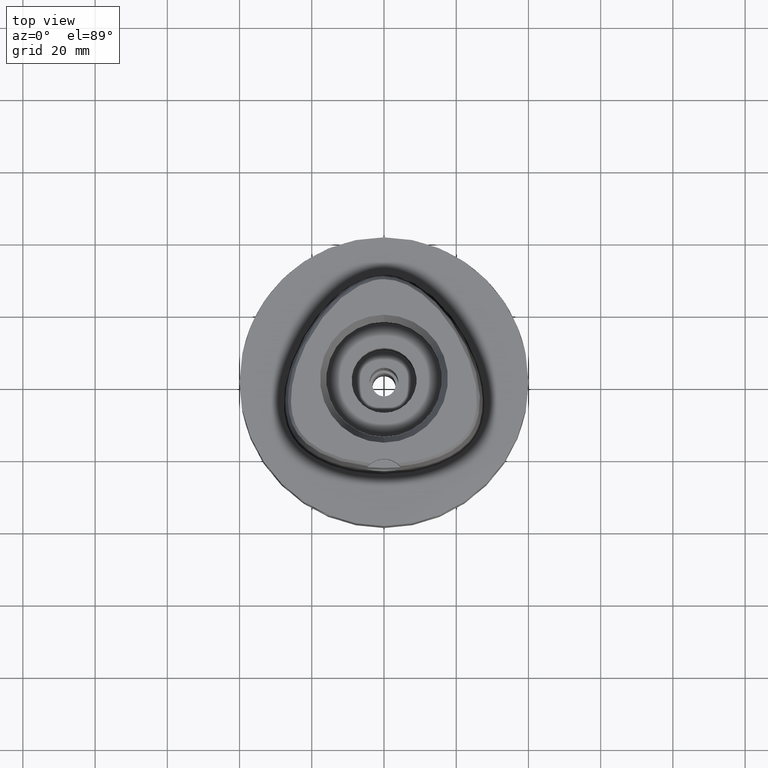
[diagram: clean part render]
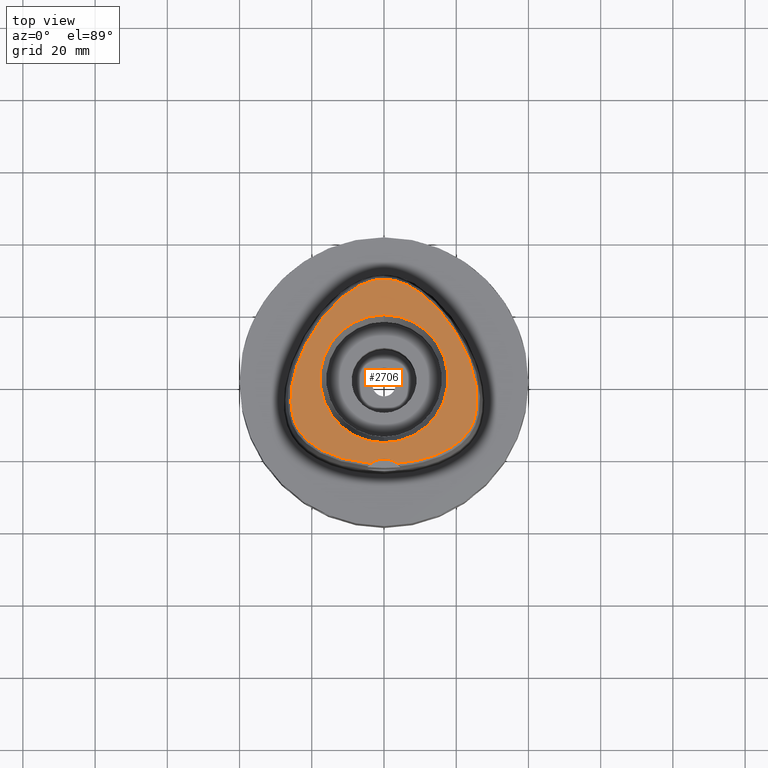
[diagram: same view with one face highlighted and labeled with its STEP entity id]
A machine part, top view. The second image highlights one B-rep face of the part: STEP entity #2706.
In plain terms, the highlighted planar face has unit normal (0, 0, 1).
Its self-contained STEP definition (entity closure, byte-faithful):
#14 = CARTESIAN_POINT ( 'NONE',  ( 11.07918744940879918, 23.03051546725049903, 48.00000000000628120 ) ) ;
#17 = CARTESIAN_POINT ( 'NONE',  ( -2.553072304996999878E-11, 27.58331912251000162, 48.00000000000000000 ) ) ;
#40 = CARTESIAN_POINT ( 'NONE',  ( 17.68852893098051737, 16.00958332231810388, 48.00000000001046629 ) ) ;
#42 = CARTESIAN_POINT ( 'NONE',  ( -6.203520479232567553, 26.11107304853123523, 47.99999999999522515 ) ) ;
#70 = CARTESIAN_POINT ( 'NONE',  ( -10.03780479163900452, 23.82723751531070633, 48.00000000000544986 ) ) ;
#89 = CARTESIAN_POINT ( 'NONE',  ( 20.51253914624933827, -17.67119446945637051, 47.99999999999860734 ) ) ;
#116 = DIRECTION ( 'NONE',  ( 0.0000000000000000000, 0.0000000000000000000, 1.000000000000000000 ) ) ;
#243 = CARTESIAN_POINT ( 'NONE',  ( -15.47246034441845808, 18.77924032487073802, 47.99999999999998579 ) ) ;
#266 = CARTESIAN_POINT ( 'NONE',  ( -4.354443962178451422, -23.38344539136164357, 48.00000000000298428 ) ) ;
#288 = CIRCLE ( 'NONE', #4679, 17.71487483155999954 ) ;
#289 = CARTESIAN_POINT ( 'NONE',  ( -14.35357212122610093, 20.00684525407350023, 47.99999999999752731 ) ) ;
#338 = CARTESIAN_POINT ( 'NONE',  ( -3.652529789304999941, -23.43985019791999846, 48.00000000000000000 ) ) ;
#365 = CARTESIAN_POINT ( 'NONE',  ( 12.14811716929812313, 22.13187320258825608, 48.00000000000350298 ) ) ;
#392 = CARTESIAN_POINT ( 'NONE',  ( -2.553072304996999878E-11, 27.58331912251000162, 48.00000000000000000 ) ) ;
#443 = VERTEX_POINT ( 'NONE', #4578 ) ;
#446 = CARTESIAN_POINT ( 'NONE',  ( 22.45659887780338693, 7.877591736060503891, 48.00000000001048051 ) ) ;
#472 = CARTESIAN_POINT ( 'NONE',  ( 25.74155027847782051, -7.352132003090151358, 48.00000000000957812 ) ) ;
#493 = CARTESIAN_POINT ( 'NONE',  ( 22.82172265263941568, -15.36274108901803004, 48.00000000000577671 ) ) ;
#601 = ORIENTED_EDGE ( 'NONE', *, *, #1905, .F. ) ;
#656 = CARTESIAN_POINT ( 'NONE',  ( -24.89056289417855083, -11.61105474084655498, 48.00000000000004263 ) ) ;
#680 = CARTESIAN_POINT ( 'NONE',  ( -25.33661149944509106, -10.07113708571412225, 48.00000000000230926 ) ) ;
#703 = CARTESIAN_POINT ( 'NONE',  ( -22.82072892860646007, -15.36398915678535992, 48.00000000000412115 ) ) ;
#724 = CARTESIAN_POINT ( 'NONE',  ( 25.41171405094078395, -1.468769615953190444, 48.00000000001066525 ) ) ;
#753 = CARTESIAN_POINT ( 'NONE',  ( -17.68810259327883827, 16.01016819645106892, 48.00000000000530775 ) ) ;
#782 = CARTESIAN_POINT ( 'NONE',  ( -11.07816725942412539, 23.03133635782646493, 48.00000000000081002 ) ) ;
#832 = CARTESIAN_POINT ( 'NONE',  ( 18.76051936065131898, 14.48366014233184451, 48.00000000001169553 ) ) ;
#840 = ORIENTED_EDGE ( 'NONE', *, *, #4238, .F. ) ;
#865 = PLANE ( 'NONE',  #2387 ) ;
#885 = CARTESIAN_POINT ( 'NONE',  ( 12.15683615293914421, -21.88711351950903605, 48.00000000000229505 ) ) ;
#908 = CARTESIAN_POINT ( 'NONE',  ( 25.33687583872236004, -10.06999584063121489, 48.00000000000807887 ) ) ;
#912 = EDGE_LOOP ( 'NONE', ( #840, #3754 ) ) ;
#932 = CARTESIAN_POINT ( 'NONE',  ( 17.07549476912047126, -19.90378693825110545, 48.00000000000873257 ) ) ;
#956 = CARTESIAN_POINT ( 'NONE',  ( 25.78811069500995501, -5.218135357748018954, 48.00000000000882494 ) ) ;
#1020 = DIRECTION ( 'NONE',  ( 1.000000000000000000, 0.0000000000000000000, 0.0000000000000000000 ) ) ;
#1051 = CARTESIAN_POINT ( 'NONE',  ( -3.692743038414604939, -23.43666978756737151, 48.00000000000130029 ) ) ;
#1077 = CARTESIAN_POINT ( 'NONE',  ( -21.17991838301969310, -17.09989881138448098, 47.99999999999615596 ) ) ;
#1176 = CARTESIAN_POINT ( 'NONE',  ( 1.407937999592147715, 27.50970958195232186, 48.00000000000996181 ) ) ;
#1179 = CARTESIAN_POINT ( 'NONE',  ( -9.027913645276933963, 24.52726119145161476, 47.99999999999369038 ) ) ;
#1204 = CARTESIAN_POINT ( 'NONE',  ( 19.78466709479843999, 12.88995995782152093, 48.00000000000463984 ) ) ;
#1206 = CARTESIAN_POINT ( 'NONE',  ( -4.489954052493647652, 26.80204639255713772, 48.00000000000142819 ) ) ;
#1234 = CARTESIAN_POINT ( 'NONE',  ( 5.331982176208994062, 26.48833275828288336, 48.00000000000657963 ) ) ;
#1259 = CARTESIAN_POINT ( 'NONE',  ( 24.89096213678608649, -11.60991207239368883, 48.00000000000448352 ) ) ;
#1280 = CARTESIAN_POINT ( 'NONE',  ( 3.652533226355999751, -23.43985283522000174, 48.00000000000000000 ) ) ;
#1304 = CARTESIAN_POINT ( 'NONE',  ( 18.95779336836812234, -18.80349047535435147, 48.00000000000593303 ) ) ;
#1329 = CARTESIAN_POINT ( 'NONE',  ( 24.62320007856678572, -12.31148373401217633, 48.00000000000552802 ) ) ;
#1356 = CARTESIAN_POINT ( 'NONE',  ( 25.51037851176826621, -9.222789616917854261, 48.00000000001114842 ) ) ;
#1404 = VERTEX_POINT ( 'NONE', #1502 ) ;
#1443 = CARTESIAN_POINT ( 'NONE',  ( -17.07251346402895109, -19.90534499102620458, 47.99999999999933209 ) ) ;
#1475 = CARTESIAN_POINT ( 'NONE',  ( -22.45665628224229593, 7.877471279649088665, 47.99999999999600675 ) ) ;
#1499 = CARTESIAN_POINT ( 'NONE',  ( -25.12916461511468569, -10.86541650940522707, 47.99999999999379696 ) ) ;
#1502 = CARTESIAN_POINT ( 'NONE',  ( 0.0000000000000000000, -17.71487483155999954, 48.00000000000000000 ) ) ;
#1523 = CARTESIAN_POINT ( 'NONE',  ( -25.78814000082562785, -5.219183132163781380, 47.99999999999690914 ) ) ;
#1549 = CARTESIAN_POINT ( 'NONE',  ( -25.14146662215793526, -0.06794041304841019757, 47.99999999999812417 ) ) ;
#1575 = CARTESIAN_POINT ( 'NONE',  ( 4.491298471527593428, 26.80158405531564725, 48.00000000000893152 ) ) ;
#1586 = CARTESIAN_POINT ( 'NONE',  ( 0.0000000000000000000, 0.0000000000000000000, 48.00000000000000000 ) ) ;
#1605 = CARTESIAN_POINT ( 'NONE',  ( 15.47311546589700981, 18.77848662925425671, 48.00000000000688516 ) ) ;
#1640 = CIRCLE ( 'NONE', #2547, 17.71487483155999954 ) ;
#1661 = CARTESIAN_POINT ( 'NONE',  ( -5.330667503236499627, 26.48886318459389955, 47.99999999999606359 ) ) ;
#1681 = CARTESIAN_POINT ( 'NONE',  ( 25.72845965679329794, -4.044145215521676384, 48.00000000001287503 ) ) ;
#1682 = CARTESIAN_POINT ( 'NONE',  ( -12.14717624329545842, 22.13270362300921335, 48.00000000000080291 ) ) ;
#1708 = DIRECTION ( 'NONE',  ( 0.6087555377260667200, 0.7933578607966567109, 0.0000000000000000000 ) ) ;
#1755 = CARTESIAN_POINT ( 'NONE',  ( 22.33100613406630330, -15.94420923685427383, 48.00000000000813571 ) ) ;
#1839 = CARTESIAN_POINT ( 'NONE',  ( -12.15213727002767818, -21.88854758767134712, 48.00000000000115108 ) ) ;
#1862 = CARTESIAN_POINT ( 'NONE',  ( -25.74147105879488606, -7.353240448490008241, 47.99999999999773337 ) ) ;
#1887 = CARTESIAN_POINT ( 'NONE',  ( -13.24182048141415002, 21.12501160990126792, 47.99999999999865707 ) ) ;
#1904 = CARTESIAN_POINT ( 'NONE',  ( 0.0000000000000000000, 17.71487483155999954, 48.00000000000000000 ) ) ;
#1905 = EDGE_CURVE ( 'NONE', #2220, #2843, #1937, .T. ) ;
#1914 = CARTESIAN_POINT ( 'NONE',  ( -18.95547945645235188, -18.80500687501485046, 47.99999999999751310 ) ) ;
#1937 = CIRCLE ( 'NONE', #2930, 6.000000000000002665 ) ;
#1938 = CARTESIAN_POINT ( 'NONE',  ( 6.204805495149085637, 26.11047595223612561, 48.00000000000840572 ) ) ;
#1940 = CARTESIAN_POINT ( 'NONE',  ( -18.05758772860313499, -19.36077714811458605, 47.99999999999168665 ) ) ;
#1966 = CARTESIAN_POINT ( 'NONE',  ( 13.24267791555831586, 21.12418368643672295, 48.00000000000435563 ) ) ;
#1969 = CARTESIAN_POINT ( 'NONE',  ( -1.406513445701097265, 27.50987728443618607, 48.00000000000225953 ) ) ;
#2016 = CARTESIAN_POINT ( 'NONE',  ( 3.680297990135618758, 27.05591354499868118, 48.00000000000430589 ) ) ;
#2091 = CARTESIAN_POINT ( 'NONE',  ( 7.396182376302800066, -22.99483633013773343, 48.00000000000392930 ) ) ;
#2144 = CARTESIAN_POINT ( 'NONE',  ( 15.99678577414464442, -20.43406366492974868, 48.00000000000594014 ) ) ;
#2150 = EDGE_CURVE ( 'NONE', #443, #2220, #3716, .T. ) ;
#2171 = CARTESIAN_POINT ( 'NONE',  ( 3.695072017992939273, -23.43648746218602952, 48.00000000000765255 ) ) ;
#2220 = VERTEX_POINT ( 'NONE', #1280 ) ;
#2258 = CARTESIAN_POINT ( 'NONE',  ( -25.51017841222298799, -9.223923978199229268, 48.00000000000093792 ) ) ;
#2282 = CARTESIAN_POINT ( 'NONE',  ( -23.81131852266339877, 4.547972304024906265, 47.99999999999483435 ) ) ;
#2309 = CARTESIAN_POINT ( 'NONE',  ( -7.390055773641162951, -22.99586658608208367, 47.99999999999312905 ) ) ;
#2332 = CARTESIAN_POINT ( 'NONE',  ( 0.2325907962420787067, 27.58331912251247076, 48.00000000000036948 ) ) ;
#2334 = CARTESIAN_POINT ( 'NONE',  ( -24.32740975879009682, -12.97324844465282290, 47.99999999999835154 ) ) ;
#2360 = CARTESIAN_POINT ( 'NONE',  ( -3.678923649487574554, 27.05630543830325507, 47.99999999999818812 ) ) ;
#2387 = AXIS2_PLACEMENT_3D ( 'NONE', #4862, #2569, #1020 ) ;
#2436 = CARTESIAN_POINT ( 'NONE',  ( 21.64191216433157194, 9.570096010442041390, 48.00000000000741096 ) ) ;
#2455 = DIRECTION ( 'NONE',  ( 0.0000000000000000000, 0.0000000000000000000, 1.000000000000000000 ) ) ;
#2507 = CARTESIAN_POINT ( 'NONE',  ( 24.00708073425193945, -13.59389763843173604, 48.00000000001132605 ) ) ;
#2530 = DIRECTION ( 'NONE',  ( 0.0000000000000000000, -1.000000000000000000, 0.0000000000000000000 ) ) ;
#2547 = AXIS2_PLACEMENT_3D ( 'NONE', #4849, #2455, #2530 ) ;
#2551 = VERTEX_POINT ( 'NONE', #1904 ) ;
#2561 = CARTESIAN_POINT ( 'NONE',  ( 25.79052179444915183, -6.319355031379888743, 48.00000000001120526 ) ) ;
#2569 = DIRECTION ( 'NONE',  ( 0.0000000000000000000, 0.0000000000000000000, 1.000000000000000000 ) ) ;
#2623 = CARTESIAN_POINT ( 'NONE',  ( -3.652529789304999941, -23.43985019791999846, 48.00000000000000000 ) ) ;
#2653 = CARTESIAN_POINT ( 'NONE',  ( -22.32985285487841054, -15.94550431091137632, 48.00000000000371614 ) ) ;
#2673 = CARTESIAN_POINT ( 'NONE',  ( -13.53666233734219659, -21.43297585322829946, 47.99999999999625544 ) ) ;
#2706 = ADVANCED_FACE ( 'NONE', ( #2852, #4421 ), #865, .T. ) ;
#2722 = CARTESIAN_POINT ( 'NONE',  ( -15.99341638177734559, -20.43562447749356892, 47.99999999999690914 ) ) ;
#2727 = DIRECTION ( 'NONE',  ( 0.0000000000000000000, 1.000000000000000000, 0.0000000000000000000 ) ) ;
#2745 = CARTESIAN_POINT ( 'NONE',  ( -20.74831938584451052, 11.24670202905056549, 47.99999999999447198 ) ) ;
#2796 = CARTESIAN_POINT ( 'NONE',  ( 20.74842146925181297, 11.24651447314018071, 48.00000000001330136 ) ) ;
#2800 = CARTESIAN_POINT ( 'NONE',  ( -0.6921675427514170087, 27.57027402750234302, 48.00000000000148503 ) ) ;
#2843 = VERTEX_POINT ( 'NONE', #2623 ) ;
#2846 = CARTESIAN_POINT ( 'NONE',  ( 23.65541542674957398, -14.18997106324508373, 48.00000000001205791 ) ) ;
#2852 = FACE_OUTER_BOUND ( 'NONE', #3562, .T. ) ;
#2870 = CARTESIAN_POINT ( 'NONE',  ( 21.78596494080999335, -16.52262878099936216, 48.00000000000353140 ) ) ;
#2893 = CARTESIAN_POINT ( 'NONE',  ( 25.12949508357631601, -10.86427360166579703, 48.00000000000397193 ) ) ;
#2915 = CARTESIAN_POINT ( 'NONE',  ( 25.64658655007773191, -8.318518488027708102, 48.00000000001132605 ) ) ;
#2930 = AXIS2_PLACEMENT_3D ( 'NONE', #3330, #116, #1708 ) ;
#2941 = CARTESIAN_POINT ( 'NONE',  ( 14.81975810291421070, -20.94516920634564983, 48.00000000000877520 ) ) ;
#2973 = EDGE_CURVE ( 'NONE', #2843, #443, #4102, .T. ) ;
#3031 = CARTESIAN_POINT ( 'NONE',  ( -21.78463111686031084, -16.52397191851300917, 48.00000000000079581 ) ) ;
#3058 = CARTESIAN_POINT ( 'NONE',  ( -14.81597509389676759, -20.94671102737228807, 47.99999999999852918 ) ) ;
#3105 = CARTESIAN_POINT ( 'NONE',  ( 14.35433142683483254, 20.00604447574464118, 48.00000000000090239 ) ) ;
#3107 = CARTESIAN_POINT ( 'NONE',  ( -25.41186334295217719, -1.469639852780010525, 47.99999999999862155 ) ) ;
#3137 = CARTESIAN_POINT ( 'NONE',  ( 2.140583849880608902, 27.40603513869852748, 48.00000000000906653 ) ) ;
#3139 = CARTESIAN_POINT ( 'NONE',  ( -24.34597371489336126, 2.947766319393675616, 48.00000000000481748 ) ) ;
#3159 = CARTESIAN_POINT ( 'NONE',  ( 23.18188527997333637, 6.195157684106668228, 48.00000000000377298 ) ) ;
#3185 = CARTESIAN_POINT ( 'NONE',  ( 2.897393261679669596, 27.25600202852874432, 48.00000000000189004 ) ) ;
#3212 = CARTESIAN_POINT ( 'NONE',  ( 8.053467330374205702, 25.13580020532306492, 47.99999999999884182 ) ) ;
#3216 = CARTESIAN_POINT ( 'NONE',  ( -7.110865803015086861, 25.66222324296154866, 48.00000000000081712 ) ) ;
#3237 = CARTESIAN_POINT ( 'NONE',  ( 10.66892483387011836, -22.30459704282058908, 48.00000000001362110 ) ) ;
#3258 = CARTESIAN_POINT ( 'NONE',  ( 5.628119991153109680, -23.25222728396831684, 48.00000000001031708 ) ) ;
#3325 = CARTESIAN_POINT ( 'NONE',  ( 3.652533226355999751, -23.43985283522000174, 48.00000000000000000 ) ) ;
#3330 = CARTESIAN_POINT ( 'NONE',  ( 0.0000000000000000000, -28.19999999999999929, 48.00000000000000000 ) ) ;
#3366 = ORIENTED_EDGE ( 'NONE', *, *, #2150, .F. ) ;
#3435 = CARTESIAN_POINT ( 'NONE',  ( -25.60527911802655154, -2.795135548249640500, 48.00000000000235900 ) ) ;
#3462 = CARTESIAN_POINT ( 'NONE',  ( -20.51077223929940274, -17.67263102127748908, 47.99999999999779732 ) ) ;
#3486 = CARTESIAN_POINT ( 'NONE',  ( -24.62272929601575555, -12.31262433038725668, 47.99999999999472777 ) ) ;
#3511 = CARTESIAN_POINT ( 'NONE',  ( -25.64644810599489233, -8.319642749356511047, 48.00000000000004974 ) ) ;
#3539 = CARTESIAN_POINT ( 'NONE',  ( 0.6937438505403475952, 27.57019898700802685, 48.00000000000102318 ) ) ;
#3542 = CARTESIAN_POINT ( 'NONE',  ( -2.139154069217110710, 27.40627708267159335, 47.99999999999956657 ) ) ;
#3562 = EDGE_LOOP ( 'NONE', ( #3366, #4731, #601 ) ) ;
#3565 = CARTESIAN_POINT ( 'NONE',  ( 7.112111422624279200, 25.66156608519059645, 48.00000000000407852 ) ) ;
#3591 = CARTESIAN_POINT ( 'NONE',  ( 10.03889926273809685, 23.82643791975830538, 48.00000000000996891 ) ) ;
#3619 = CARTESIAN_POINT ( 'NONE',  ( 24.34579675530948961, 2.948329282943650931, 48.00000000000770228 ) ) ;
#3642 = CARTESIAN_POINT ( 'NONE',  ( 9.079666835764129473, -22.67647771863802575, 48.00000000001297451 ) ) ;
#3644 = CARTESIAN_POINT ( 'NONE',  ( -8.052265342579868701, 25.13651235630377556, 48.00000000000103029 ) ) ;
#3684 = CARTESIAN_POINT ( 'NONE',  ( 18.06021793803068221, -19.35923481219115416, 48.00000000000199663 ) ) ;
#3716 = B_SPLINE_CURVE_WITH_KNOTS ( 'NONE', 3,
 ( #392, #2332, #3539, #1176, #3137, #3185, #2016, #1575, #1234, #1938, #3565, #3212, #4695, #3591, #14, #365, #1966, #3105, #1605, #4751, #40, #832, #1204, #2796, #2436, #446, #3159, #4365, #3619, #4668, #4284, #724, #3898, #1681, #956, #2561, #472, #2915, #1356, #908, #2893, #1259, #1329, #4459, #2507, #2846, #4808, #493, #1755, #2870, #4130, #89, #4437, #1304, #3684, #932, #2144, #2941, #4511, #885, #3237, #3642, #2091, #3258, #4830, #2171, #3325 ),
 .UNSPECIFIED., .F., .F.,
 ( 4, 1, 1, 1, 1, 1, 1, 1, 1, 1, 1, 1, 1, 1, 1, 1, 1, 1, 1, 1, 1, 1, 1, 1, 1, 1, 1, 1, 1, 1, 1, 1, 1, 1, 1, 1, 1, 1, 1, 1, 1, 1, 1, 1, 1, 1, 1, 1, 1, 1, 1, 1, 1, 1, 1, 1, 1, 1, 1, 1, 1, 1, 1, 1, 4 ),
 ( 0.0000000000000000000, 0.01585579672639991777, 0.03171159345210006197, 0.04756739017779998413, 0.06342318690360004840, 0.07927898362929997056, 0.09513478035499989272, 0.1109905770807000369, 0.1268463738063999591, 0.1427021705320999923, 0.1585579672578999455, 0.1744137639835999787, 0.1902695607093000119, 0.2061253574349999340, 0.2219811541607000782, 0.2378369508864000004, 0.2536927476120999225, 0.2695485443380000179, 0.2854043410636999401, 0.3012601377893999732, 0.3171159345151000064, 0.3329717312407999286, 0.3488275279665000728, 0.3646833246923000260, 0.3805391214179999482, 0.3963949181436999813, 0.4122507148694000145, 0.4281065115951000477, 0.4439623083207999699, 0.4598181050465000030, 0.4756739017723000673, 0.4915296984979999895, 0.5073854952237000226, 0.5232412919494000558, 0.5390970886750999780, 0.5549528854007999001, 0.5708086821265999644, 0.5866644788522999976, 0.6025202755780000308, 0.6183760723036999529, 0.6342318690293999861, 0.6500876657551999394, 0.6659434624808999725, 0.6817992592067000368, 0.6976550559323999590, 0.7135108526580999921, 0.7293666493838000253, 0.7452224461095000585, 0.7610782428351999807, 0.7769340395610000449, 0.7927898362866999671, 0.8086456330124000003, 0.8245014297380999224, 0.8403572264637999556, 0.8562130231894999888, 0.8720688199152000220, 0.8879246166409999752, 0.9037804133667199924, 0.9196362100924300176, 0.9354920068181400428, 0.9513478035438499569, 0.9672036002695799661, 0.9830593969952899913, 0.9989151937210170029, 1.000000000000000000 ),
 .UNSPECIFIED. ) ;
#3754 = ORIENTED_EDGE ( 'NONE', *, *, #4135, .F. ) ;
#3798 = CARTESIAN_POINT ( 'NONE',  ( -23.65469623605368099, -14.19111717469258060, 47.99999999999486278 ) ) ;
#3847 = CARTESIAN_POINT ( 'NONE',  ( -18.76020591298123463, 14.48413071376761252, 48.00000000000545697 ) ) ;
#3898 = CARTESIAN_POINT ( 'NONE',  ( 25.60516200877535198, -2.794192459352786262, 47.99999999999936051 ) ) ;
#3900 = CARTESIAN_POINT ( 'NONE',  ( -23.18199738827442147, 6.194888181193964449, 47.99999999999503331 ) ) ;
#3934 = DIRECTION ( 'NONE',  ( 0.0000000000000000000, 0.0000000000000000000, 1.000000000000000000 ) ) ;
#4029 = CARTESIAN_POINT ( 'NONE',  ( -0.2321695341565001014, 27.58331912251540174, 48.00000000000068212 ) ) ;
#4102 = B_SPLINE_CURVE_WITH_KNOTS ( 'NONE', 3,
 ( #338, #1051, #266, #4670, #2309, #4262, #4215, #1839, #2673, #3058, #2722, #1443, #1940, #1914, #4644, #3462, #1077, #3031, #2653, #703, #5037, #3798, #4235, #2334, #3486, #656, #1499, #680, #2258, #3511, #1862, #5063, #1523, #5011, #3435, #3107, #1549, #4286, #3139, #2282, #3900, #1475, #4698, #2745, #4311, #3847, #753, #4620, #243, #289, #1887, #1682, #782, #70, #1179, #3644, #3216, #42, #1661, #1206, #2360, #4784, #3542, #1969, #2800, #4029, #17 ),
 .UNSPECIFIED., .F., .F.,
 ( 4, 1, 1, 1, 1, 1, 1, 1, 1, 1, 1, 1, 1, 1, 1, 1, 1, 1, 1, 1, 1, 1, 1, 1, 1, 1, 1, 1, 1, 1, 1, 1, 1, 1, 1, 1, 1, 1, 1, 1, 1, 1, 1, 1, 1, 1, 1, 1, 1, 1, 1, 1, 1, 1, 1, 1, 1, 1, 1, 1, 1, 1, 1, 1, 4 ),
 ( 0.0000000000000000000, 0.001025211071800091744, 0.01688195375320000746, 0.03273869643469995427, 0.04859543911610009204, 0.06445218179750000775, 0.08030892447889992347, 0.09616566716030006123, 0.1120224098416999770, 0.1278791525231999238, 0.1437358952045000304, 0.1595926378859000572, 0.1754493805672999729, 0.1913061232486999996, 0.2071628659301000264, 0.2230196086114999421, 0.2388763512929999999, 0.2547330939744000267, 0.2705898366558000534, 0.2864465793371999691, 0.3023033220184999648, 0.3181600646999001025, 0.3340168073814000493, 0.3498735500627999651, 0.3657302927441999918, 0.3815870354256000185, 0.3974437781070000453, 0.4133005207884000720, 0.4291572634697999877, 0.4450140061513000456, 0.4608707488326000412, 0.4767274915139999569, 0.4925842341953999837, 0.5084409768768000104, 0.5242977195582000371, 0.5401544622396999840, 0.5560112049211000107, 0.5718679476025000374, 0.5877246902838999532, 0.6035814329652000598, 0.6194381756466000866, 0.6352949183280000023, 0.6511516610095000601, 0.6670084036908999758, 0.6828651463723000026, 0.6987218890537000293, 0.7145786317350999450, 0.7304353744164999718, 0.7462921170980000296, 0.7621488597793000253, 0.7780056024607000520, 0.7938623451421000787, 0.8097190878234999944, 0.8255758305049000212, 0.8414325731862999369, 0.8572893158677999947, 0.8731460585492000215, 0.8890028012306000482, 0.9048595439119599959, 0.9207162865933600226, 0.9365730292747700414, 0.9524297719561699571, 0.9682865146375799759, 0.9841432573189800026, 1.000000000000000000 ),
 .UNSPECIFIED. ) ;
#4130 = CARTESIAN_POINT ( 'NONE',  ( 21.18145661121257106, -17.09850743469279877, 48.00000000000564881 ) ) ;
#4135 = EDGE_CURVE ( 'NONE', #2551, #1404, #288, .T. ) ;
#4215 = CARTESIAN_POINT ( 'NONE',  ( -10.66374418708144489, -22.30593187528663890, 47.99999999999944578 ) ) ;
#4235 = CARTESIAN_POINT ( 'NONE',  ( -24.00645943641090341, -13.59502449743926356, 48.00000000000311218 ) ) ;
#4238 = EDGE_CURVE ( 'NONE', #1404, #2551, #1640, .T. ) ;
#4262 = CARTESIAN_POINT ( 'NONE',  ( -9.073991136863179818, -22.67767904109285126, 47.99999999999603517 ) ) ;
#4284 = CARTESIAN_POINT ( 'NONE',  ( 25.14129527416458387, -0.06715740301647529775, 48.00000000000350298 ) ) ;
#4286 = CARTESIAN_POINT ( 'NONE',  ( -24.78798701905912338, 1.406367702425490807, 47.99999999999243983 ) ) ;
#4311 = CARTESIAN_POINT ( 'NONE',  ( -19.78446217835673338, 12.89029827907079806, 47.99999999999811706 ) ) ;
#4365 = CARTESIAN_POINT ( 'NONE',  ( 23.81116373424578470, 4.548397580874557811, 48.00000000001167422 ) ) ;
#4421 = FACE_BOUND ( 'NONE', #912, .T. ) ;
#4437 = CARTESIAN_POINT ( 'NONE',  ( 19.77345709183133593, -18.23990985540091714, 48.00000000000410694 ) ) ;
#4459 = CARTESIAN_POINT ( 'NONE',  ( 24.32795549673422286, -12.97211154200437733, 48.00000000001162448 ) ) ;
#4511 = CARTESIAN_POINT ( 'NONE',  ( 13.54089058450936456, -21.43147460488950529, 48.00000000000330402 ) ) ;
#4578 = CARTESIAN_POINT ( 'NONE',  ( -2.553072304996999878E-11, 27.58331912251000162, 48.00000000000000000 ) ) ;
#4620 = CARTESIAN_POINT ( 'NONE',  ( -16.58720414441394553, 17.44590650687314692, 47.99999999999317168 ) ) ;
#4644 = CARTESIAN_POINT ( 'NONE',  ( -19.77143225161970364, -18.24138896764283047, 47.99999999999931788 ) ) ;
#4668 = CARTESIAN_POINT ( 'NONE',  ( 24.78780591084748508, 1.407047860335191025, 48.00000000000224532 ) ) ;
#4670 = CARTESIAN_POINT ( 'NONE',  ( -5.621443921966375434, -23.25305008129707574, 48.00000000000304823 ) ) ;
#4679 = AXIS2_PLACEMENT_3D ( 'NONE', #1586, #3934, #2727 ) ;
#4695 = CARTESIAN_POINT ( 'NONE',  ( 9.029067995419744364, 24.52649931750232071, 48.00000000001309530 ) ) ;
#4698 = CARTESIAN_POINT ( 'NONE',  ( -21.64189922317282111, 9.570126786846532951, 47.99999999999941735 ) ) ;
#4731 = ORIENTED_EDGE ( 'NONE', *, *, #2973, .F. ) ;
#4751 = CARTESIAN_POINT ( 'NONE',  ( 16.58774972841608175, 17.44522137221365554, 48.00000000000839151 ) ) ;
#4784 = CARTESIAN_POINT ( 'NONE',  ( -2.895995683505172558, 27.25632069045385819, 48.00000000000270006 ) ) ;
#4808 = CARTESIAN_POINT ( 'NONE',  ( 23.26225374360347331, -14.77782433120812478, 48.00000000000814282 ) ) ;
#4830 = CARTESIAN_POINT ( 'NONE',  ( 4.358863301033684579, -23.38302754646159443, 48.00000000000907363 ) ) ;
#4849 = CARTESIAN_POINT ( 'NONE',  ( 0.0000000000000000000, 0.0000000000000000000, 48.00000000000000000 ) ) ;
#4862 = CARTESIAN_POINT ( 'NONE',  ( 0.0000000000000000000, 0.0000000000000000000, 48.00000000000000000 ) ) ;
#5011 = CARTESIAN_POINT ( 'NONE',  ( -25.72853642077442871, -4.045150056829520224, 47.99999999999418065 ) ) ;
#5037 = CARTESIAN_POINT ( 'NONE',  ( -23.26140416530326149, -14.77902311537844504, 47.99999999999862865 ) ) ;
#5063 = CARTESIAN_POINT ( 'NONE',  ( -25.79049889474285351, -6.320436011330500925, 48.00000000000002842 ) ) ;